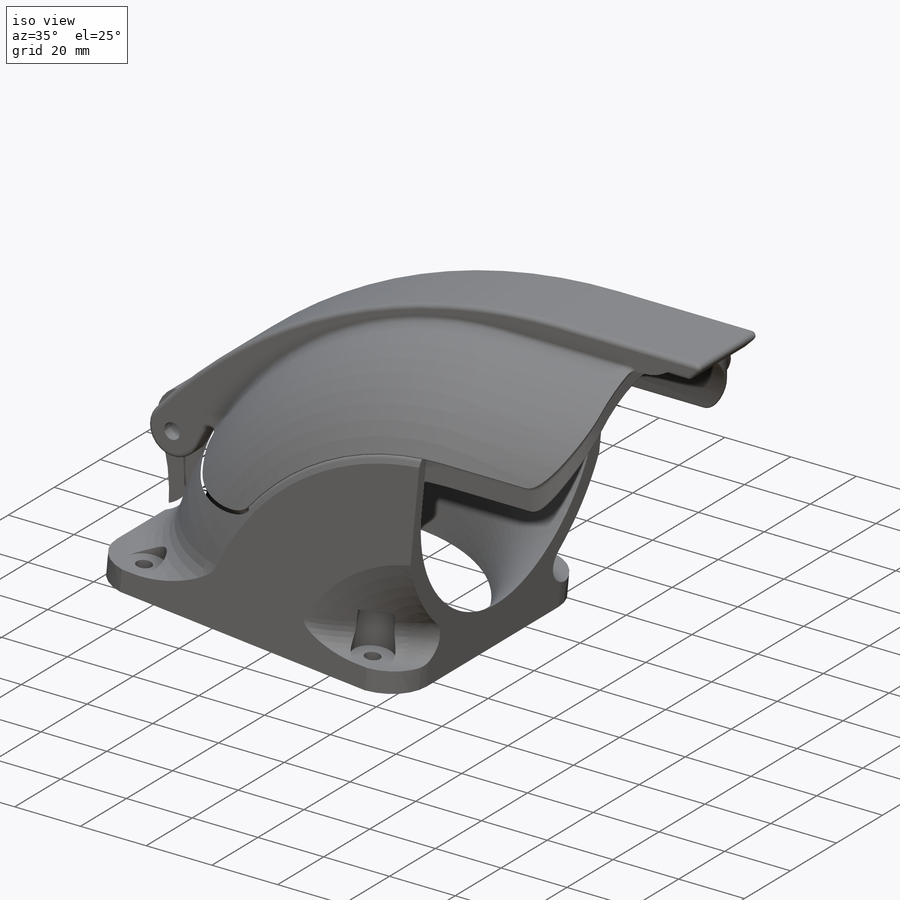
[diagram: iso view]
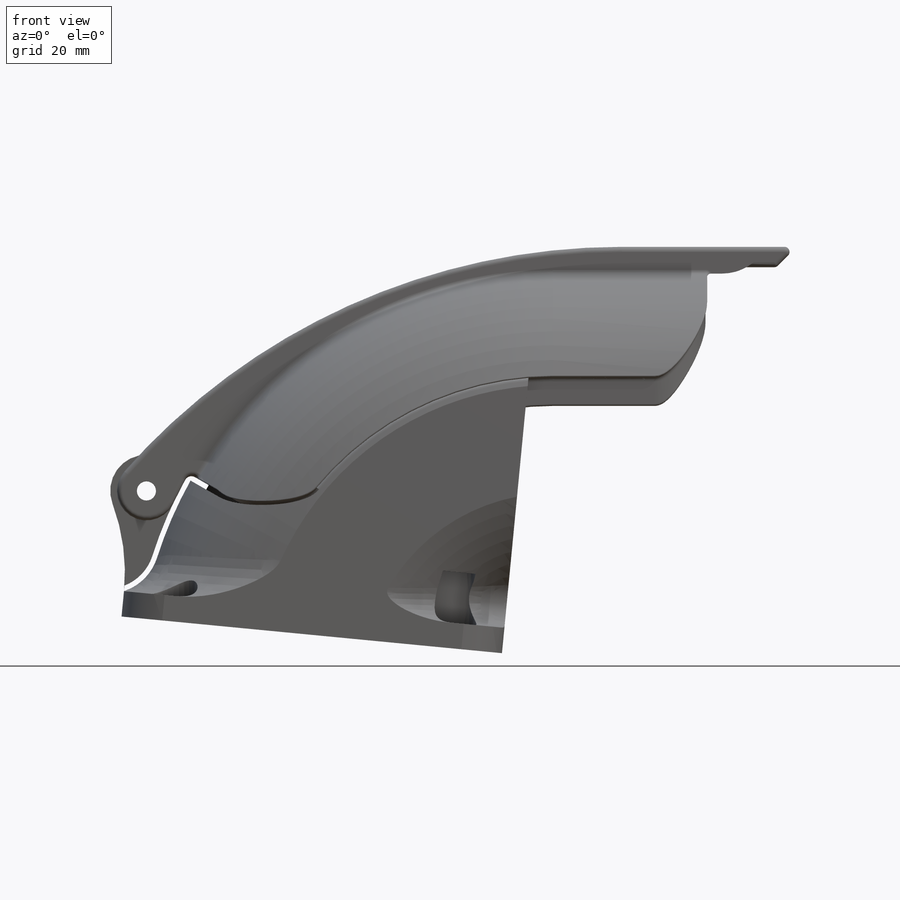
[diagram: front view]
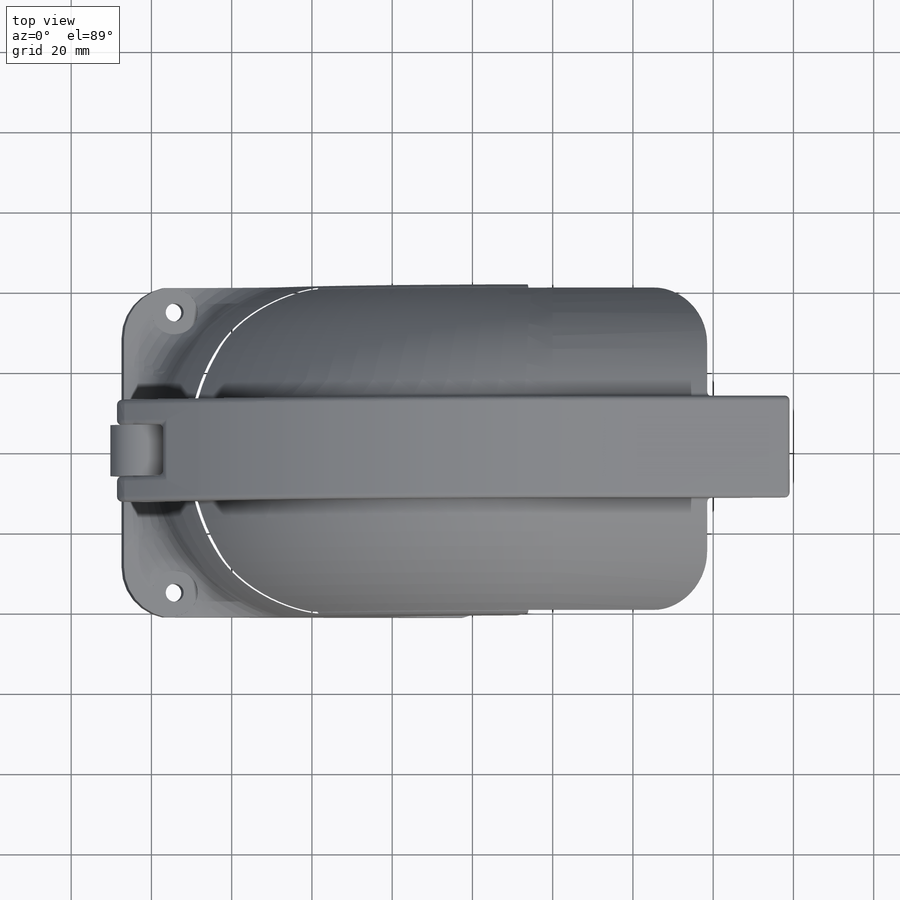
[diagram: top view]
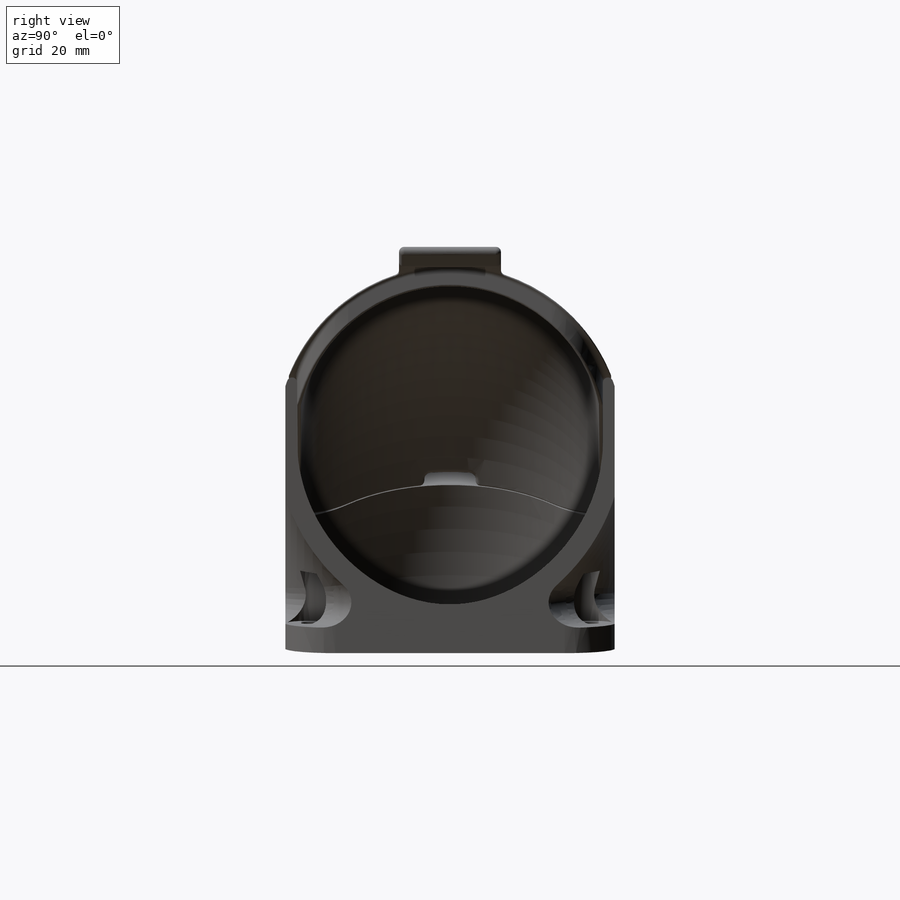
[diagram: right view]
SOLIDWORKS PART (.sldprt)
format: sldprt  version: not decoded by parser v0  size: 2,771,456 bytes
history: native  units: mm
features: sketch x24, fillet x19, cut_extrude x15, move_body x6, plane x5, extrude x4, boolean_combine x4, sweep x2, material x1 (+13 scaffold rows collapsed)
feature tree (93):
  scaffold x13  (default folders/planes/origin — collapsed)
  material  "ABS"
  sketch  "Sketch1"  dims[c1.D9=76.2mm c1.D14=76.2mm c1.D1=419.1mm c1.D2=101.6mm c1.D3=19.05mm c1.D4=19.05mm c1.D5=~447.578732mm c2.D5=84.5deg c2.D6=40.0mm c2.D7=400.0mm c2.D8=95.25mm c2.D9=10.0mm c2.D10=20.0mm c2.D11=114.3mm c2.D12=200.025mm c2.D13=95.25mm c2.D14=6.35mm c2.D15=127.0mm c2.D16=95.25mm c2.D17=203.2mm c3.D12=95.25mm c3.D10=9.525mm c3.D13=9.525mm c3.D14=76.2mm c3.D9=76.2mm c4.D14=~29.170225mm c4.D9=9.525mm c4.D16=82.55mm c4.D12=76.2mm c5.D14=25.4mm c5.D16=9.525mm c5.D18=6.35mm c5.D19=50.8mm c5.D20=44.45mm c5.D21=6.35mm c5.D22=50.8mm c6.D22=~64.798876deg c7.D22=50.8mm]
  sketch  "Sketch2"  dims[D1=38.1mm D2=38.1mm]
  plane  "Plane1"
  sketch  "Sketch3"  dims[D1=76.2mm D2=5.08mm]
  sweep  "Sweep1"
  sketch  "Sketch4"  dims[D3=39.37mm D4=42.926mm D1=88.9mm D2=95.25mm]
  extrude  "Boss-Extrude1"  Depth=12.7mm
  sketch  "Sketch5"
  cut_extrude  "Cut-Extrude1"  [1 undecoded]
  plane  "Plane2"
  sketch  "Sketch6"
  cut_extrude  "Cut-Extrude2"  [1 undecoded]
  sketch  "Sketch7"  dims[c1.D1=90.0deg c2.D1=19.05mm]
  extrude  "Boss-Extrude2"  Depth=6.35mm
  sketch  "Sketch8"  dims[D1=82.55mm]
  cut_extrude  "Cut-Extrude3"  Depth=6.35mm
  sketch  "Sketch9"
  cut_extrude  "Cut-Extrude4"  Depth=6.35mm
  fillet  "Fillet1"  Radius=12.7mm
  fillet  "Fillet2"  Radius=6.35mm
  fillet  "Fillet3"  Radius=12.7mm
  sketch  "Sketch10"  dims[D2=4.5mm D1=69.85mm]
  cut_extrude  "Cut-Extrude5"  Depth=12.7mm
  plane  "Plane3"  Offset=6.35mm
  sketch  "Sketch11"  dims[D1=11.43mm]
  cut_extrude  "Cut-Extrude6"  Depth=12.7mm
  sketch  "Sketch12"  dims[D3=4.5mm D1=69.85mm D2=12.7mm D4=82.55mm]
  cut_extrude  "Cut-Extrude7"  Depth=12.7mm
  plane  "Plane4"  Offset=6.35mm
  sketch  "Sketch13"  dims[D1=11.43mm]
  cut_extrude  "Cut-Extrude8"  Depth=25.4mm
  sketch  "Sketch14"  dims[D1=0.254mm]
  cut_extrude  "Cut-Extrude9"  [1 undecoded]
  sketch  "Sketch16"  dims[c1.D1=38.1mm c1.D2=~49.606757mm c2.D2=60.0deg]
  plane  "Plane6"
  move_body  "Body-Move/Copy1"
  sketch  "Sketch17"  dims[D1=43.18mm D2=~44.227153mm]
  sweep  "Cut-Sweep1"
  fillet  "Fillet4"  Radius=12.7mm
  sketch  "Sketch18"  dims[c1.D3=4.7625mm c1.D4=~96.723919mm c1.D1=31.75mm c1.D2=3.175mm c2.D4=3.175mm]
  extrude  "Boss-Extrude3"  Depth=12.7mm
  sketch  "Sketch19"  dims[D1=11.43mm D2=25.4mm]
  cut_extrude  "Cut-Extrude11"  Depth=3.175mm
  fillet  "Fillet8"  Radius=1.27mm
  fillet  "Fillet9"  Radius=1.27mm
  move_body  "Body-Move/Copy2"
  boolean_combine  "Combine2"
  sketch  "Sketch20"  dims[c1.D1=~104.105198mm c1.D3=165.1mm c2.D1=5.08mm c2.D2=3.175mm c3.D1=3.175mm c3.D2=5.08mm c3.D4=~17.406062mm c4.D4=~145.565488deg c5.D4=~14.356051mm c6.D4=45.0deg]
  extrude  "Boss-Extrude4"  Depth=25.4mm
  sketch  "Sketch21"  dims[D1=3.175mm]
  cut_extrude  "Cut-Extrude12"  Depth=12.7mm
  sketch  "Sketch23"
  cut_extrude  "Cut-Extrude13"  Depth=1.524mm
  sketch  "Sketch24"
  cut_extrude  "Cut-Extrude14"  [1 undecoded]
  fillet  "Fillet29"  Radius=0.508mm
  fillet  "Fillet30"  Radius=2.54mm
  fillet  "Fillet31"  Radius=2.54mm
  fillet  "Fillet32"  Radius=12.7mm
  fillet  "Fillet33"  Radius=0.254mm
  fillet  "Fillet34"  Radius=0.254mm
  fillet  "Fillet35"  Radius=1.778mm
  fillet  "Fillet36"  Radius=3.175mm
  fillet  "Fillet37"  Radius=1.27mm
  fillet  "Fillet38"  Radius=1.524mm
  fillet  "Fillet39"  Radius=1.27mm
  fillet  "Fillet40"  Radius=1.27mm
  move_body  "Body-Move/Copy3"
  boolean_combine  "Combine3"
  sketch  "Sketch26"
  cut_extrude  "Cut-Extrude15"  Depth=3.175mm
  fillet  "Fillet41"  Radius=1.27mm
  move_body  "Body-Move/Copy4"
  boolean_combine  "Combine4"
  move_body  "Body-Move/Copy5"
  sketch  "Sketch28"
  cut_extrude  "Cut-Extrude16"  [1 undecoded]
  move_body  "Body-Move/Copy7"
  boolean_combine  "Combine6"
decode coverage: 50 of 74 modeling features carry decoded parameters
note: ~ marks probable driven/reference dimensions
note: 5 parameter values undecoded
summary: no parameter record found for 5 features
note: suppression state not decoded; provenance and decode notes live in map.json
